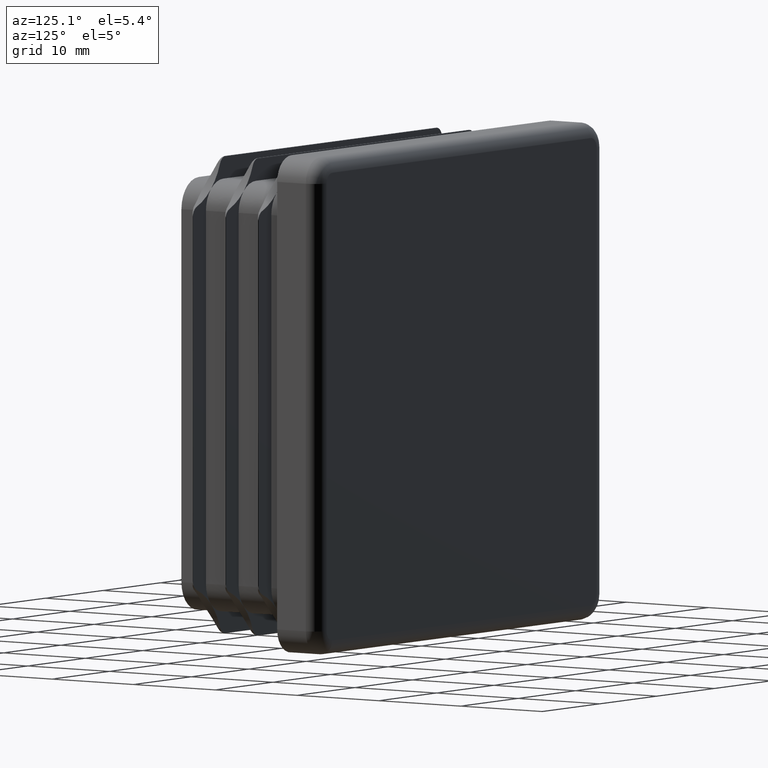
[diagram: clean part render]
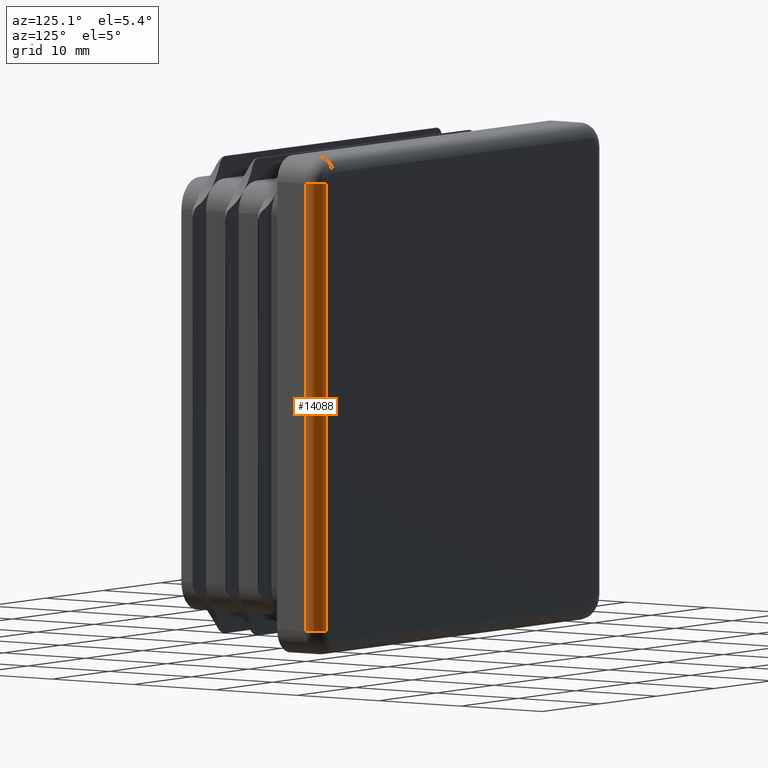
[diagram: same view with one face highlighted and labeled with its STEP entity id]
A machine part, auxiliary view. The second image highlights one B-rep face of the part: STEP entity #14088.
In plain terms, the highlighted cylindrical surface (edge-blend (fillet) strip) has radius 1.5 mm, axis along (0, -0, 1).
Its self-contained STEP definition (entity closure, byte-faithful):
#314 = CYLINDRICAL_SURFACE ( 'NONE', #842, 1.500000000000001332 ) ;
#842 = AXIS2_PLACEMENT_3D ( 'NONE', #14996, #19974, #6642 ) ;
#1246 = CARTESIAN_POINT ( 'NONE',  ( 25.00000000000000000, 3.500000000000000000, -22.50000000000000355 ) ) ;
#1396 = VERTEX_POINT ( 'NONE', #1246 ) ;
#1814 = CARTESIAN_POINT ( 'NONE',  ( 25.00000000000000711, 3.500000000000000000, 22.50000000000000000 ) ) ;
#2450 = CARTESIAN_POINT ( 'NONE',  ( 25.00000000000000711, 3.500000000000000000, 22.50000000000000000 ) ) ;
#2666 = AXIS2_PLACEMENT_3D ( 'NONE', #5972, #17617, #19298 ) ;
#2824 = ORIENTED_EDGE ( 'NONE', *, *, #13930, .F. ) ;
#3259 = DIRECTION ( 'NONE',  ( 0.000000000000000000, 0.000000000000000000, 1.000000000000000000 ) ) ;
#4877 = LINE ( 'NONE', #2450, #19162 ) ;
#4882 = DIRECTION ( 'NONE',  ( 1.000000000000000000, 0.000000000000000000, 0.000000000000000000 ) ) ;
#4884 = VERTEX_POINT ( 'NONE', #19295 ) ;
#5248 = EDGE_CURVE ( 'NONE', #10443, #4884, #6560, .T. ) ;
#5540 = FACE_OUTER_BOUND ( 'NONE', #14281, .T. ) ;
#5547 = ORIENTED_EDGE ( 'NONE', *, *, #14763, .F. ) ;
#5972 = CARTESIAN_POINT ( 'NONE',  ( 23.50000000000000711, 3.500000000000000000, 22.50000000000000000 ) ) ;
#6066 = CIRCLE ( 'NONE', #2666, 1.500000000000001332 ) ;
#6560 = LINE ( 'NONE', #10158, #19563 ) ;
#6642 = DIRECTION ( 'NONE',  ( 1.000000000000000000, 0.000000000000000000, -1.387778780781445676E-16 ) ) ;
#8210 = CARTESIAN_POINT ( 'NONE',  ( 23.49999999999999645, 3.500000000000000000, -22.50000000000000355 ) ) ;
#8694 = AXIS2_PLACEMENT_3D ( 'NONE', #8210, #3259, #4882 ) ;
#10158 = CARTESIAN_POINT ( 'NONE',  ( 23.50000000000000000, 5.000000000000000000, -22.50000000000000355 ) ) ;
#10443 = VERTEX_POINT ( 'NONE', #12773 ) ;
#12090 = ORIENTED_EDGE ( 'NONE', *, *, #5248, .F. ) ;
#12552 = DIRECTION ( 'NONE',  ( 1.387778780781445676E-16, -0.000000000000000000, 1.000000000000000000 ) ) ;
#12773 = CARTESIAN_POINT ( 'NONE',  ( 23.50000000000000711, 5.000000000000000000, 22.50000000000000000 ) ) ;
#13930 = EDGE_CURVE ( 'NONE', #15030, #10443, #6066, .T. ) ;
#14088 = ADVANCED_FACE ( 'NONE', ( #5540 ), #314, .T. ) ;
#14281 = EDGE_LOOP ( 'NONE', ( #20404, #12090, #2824, #5547 ) ) ;
#14763 = EDGE_CURVE ( 'NONE', #1396, #15030, #4877, .T. ) ;
#14996 = CARTESIAN_POINT ( 'NONE',  ( 23.50000000000000355, 3.500000000000000000, -3.261280134836397732E-15 ) ) ;
#15030 = VERTEX_POINT ( 'NONE', #1814 ) ;
#15271 = CIRCLE ( 'NONE', #8694, 1.500000000000001332 ) ;
#17617 = DIRECTION ( 'NONE',  ( 0.000000000000000000, 0.000000000000000000, 1.000000000000000000 ) ) ;
#19162 = VECTOR ( 'NONE', #12552, 1000.000000000000000 ) ;
#19295 = CARTESIAN_POINT ( 'NONE',  ( 23.50000000000000000, 5.000000000000000000, -22.50000000000000355 ) ) ;
#19298 = DIRECTION ( 'NONE',  ( 1.000000000000000000, 0.000000000000000000, 0.000000000000000000 ) ) ;
#19563 = VECTOR ( 'NONE', #20255, 1000.000000000000000 ) ;
#19974 = DIRECTION ( 'NONE',  ( 1.387778780781445676E-16, -0.000000000000000000, 1.000000000000000000 ) ) ;
#20255 = DIRECTION ( 'NONE',  ( -1.387778780781445676E-16, 0.000000000000000000, -1.000000000000000000 ) ) ;
#20404 = ORIENTED_EDGE ( 'NONE', *, *, #20930, .T. ) ;
#20930 = EDGE_CURVE ( 'NONE', #1396, #4884, #15271, .T. ) ;